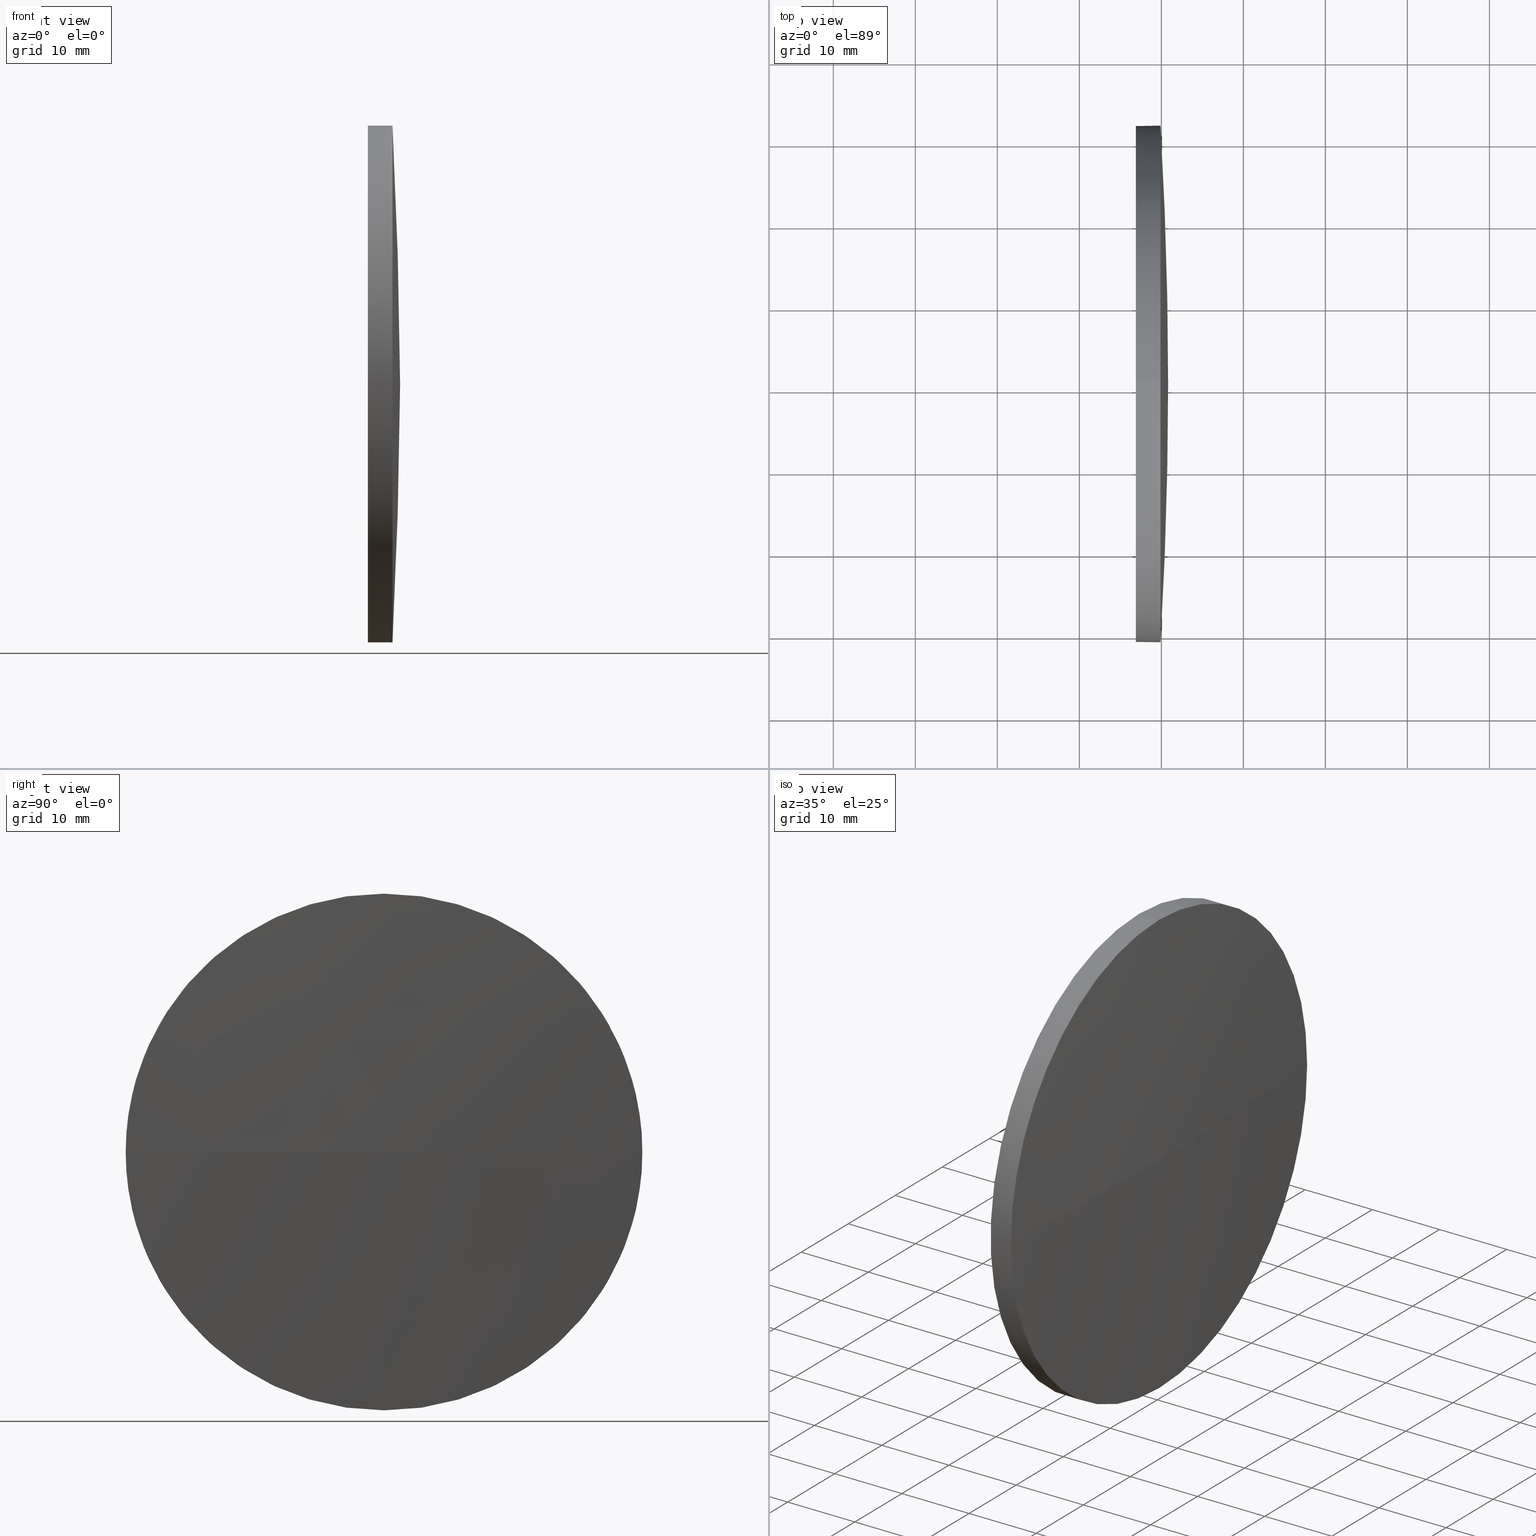
[diagram: canonical four-view strip — front | top / right | iso, engineering-drawing reading convention]
A machine part, canonical four-view strip (front | top / right | iso — engineering-drawing reading convention). The complete STEP part file that produces these views, byte-faithful:
ISO-10303-21;
HEADER;
FILE_DESCRIPTION (( 'STEP AP214' ),
    '1' );
FILE_NAME ('100248.STEP',
    '2019-05-29T01:02:08',
    ( '' ),
    ( '' ),
    'SwSTEP 2.0',
    'SolidWorks 2016',
    '' );
FILE_SCHEMA (( 'AUTOMOTIVE_DESIGN' ));
ENDSEC;

DATA;
#1 = VECTOR ( 'NONE', #186, 1000.000000000000000 ) ;
#2 = EDGE_CURVE ( 'NONE', #151, #177, #49, .T. ) ;
#3 = FACE_OUTER_BOUND ( 'NONE', #159, .T. ) ;
#4 = FILL_AREA_STYLE_COLOUR ( '', #141 ) ;
#5 =( NAMED_UNIT ( * ) PLANE_ANGLE_UNIT ( ) SI_UNIT ( $, .RADIAN. ) );
#6 = ORIENTED_EDGE ( 'NONE', *, *, #154, .T. ) ;
#7 = AXIS2_PLACEMENT_3D ( 'NONE', #115, #145, #131 ) ;
#8 = CIRCLE ( 'NONE', #59, 31.50000000000000000 ) ;
#9 = ADVANCED_FACE ( 'NONE', ( #113 ), #78, .T. ) ;
#10 = SPHERICAL_SURFACE ( 'NONE', #31, 533.9327419354799500 ) ;
#11 = PRESENTATION_STYLE_ASSIGNMENT (( #150 ) ) ;
#12 = ORIENTED_EDGE ( 'NONE', *, *, #139, .F. ) ;
#13 = AXIS2_PLACEMENT_3D ( 'NONE', #167, #94, #134 ) ;
#14 = ORIENTED_EDGE ( 'NONE', *, *, #127, .T. ) ;
#15 = CARTESIAN_POINT ( 'NONE',  ( -303.1094409340929000, 130.5185814569570700, 0.0000000000000000000 ) ) ;
#16 =( GEOMETRIC_REPRESENTATION_CONTEXT ( 3 ) GLOBAL_UNCERTAINTY_ASSIGNED_CONTEXT ( ( #58 ) ) GLOBAL_UNIT_ASSIGNED_CONTEXT ( ( #180, #148, #135 ) ) REPRESENTATION_CONTEXT ( 'NONE', 'WORKASPACE' ) );
#17 = DIRECTION ( 'NONE',  ( -1.000000000000000000, -0.0000000000000000000, -0.0000000000000000000 ) ) ;
#18 = DIRECTION ( 'NONE',  ( -1.000000000000000000, -0.0000000000000000000, -0.0000000000000000000 ) ) ;
#19 = CARTESIAN_POINT ( 'NONE',  ( 226.8933010013870400, 130.5185814569561000, 0.0000000000000000000 ) ) ;
#20 = EDGE_CURVE ( 'NONE', #90, #46, #137, .T. ) ;
#21 = DIRECTION ( 'NONE',  ( 0.0000000000000000000, 0.0000000000000000000, 1.000000000000000000 ) ) ;
#22 =( GEOMETRIC_REPRESENTATION_CONTEXT ( 3 ) GLOBAL_UNCERTAINTY_ASSIGNED_CONTEXT ( ( #163 ) ) GLOBAL_UNIT_ASSIGNED_CONTEXT ( ( #146, #35, #73 ) ) REPRESENTATION_CONTEXT ( 'NONE', 'WORKASPACE' ) );
#23 = VERTEX_POINT ( 'NONE', #126 ) ;
#24 = FILL_AREA_STYLE_COLOUR ( '', #92 ) ;
#25 = CIRCLE ( 'NONE', #156, 31.50000000000000000 ) ;
#26 = ADVANCED_FACE ( 'NONE', ( #181 ), #122, .T. ) ;
#27 = ORIENTED_EDGE ( 'NONE', *, *, #158, .T. ) ;
#28 = STYLED_ITEM ( 'NONE', ( #11 ), #125 ) ;
#29 = CIRCLE ( 'NONE', #37, 31.50000000000000000 ) ;
#30 = EDGE_CURVE ( 'NONE', #23, #177, #8, .T. ) ;
#31 = AXIS2_PLACEMENT_3D ( 'NONE', #143, #63, #179 ) ;
#32 = CARTESIAN_POINT ( 'NONE',  ( 218.1236667371545400, 130.5185814569561000, 31.50000000000000000 ) ) ;
#33 = ORIENTED_EDGE ( 'NONE', *, *, #2, .T. ) ;
#34 = SURFACE_STYLE_USAGE ( .BOTH. , #157 ) ;
#35 =( NAMED_UNIT ( * ) PLANE_ANGLE_UNIT ( ) SI_UNIT ( $, .RADIAN. ) );
#36 = CARTESIAN_POINT ( 'NONE',  ( -303.1094409340929000, 130.5185814569570700, 0.0000000000000000000 ) ) ;
#37 = AXIS2_PLACEMENT_3D ( 'NONE', #19, #161, #52 ) ;
#38 = CARTESIAN_POINT ( 'NONE',  ( 229.8933010013870400, 130.5185814569561000, 0.0000000000000000000 ) ) ;
#39 = EDGE_CURVE ( 'NONE', #77, #46, #82, .T. ) ;
#40 = MECHANICAL_DESIGN_GEOMETRIC_PRESENTATION_REPRESENTATION (  '', ( #106 ), #22 ) ;
#41 = CARTESIAN_POINT ( 'NONE',  ( 218.1236667371545400, 130.5185814569561000, -31.50000000000000000 ) ) ;
#42 = ORIENTED_EDGE ( 'NONE', *, *, #154, .F. ) ;
#43 = PRESENTATION_STYLE_ASSIGNMENT (( #34 ) ) ;
#44 = AXIS2_PLACEMENT_3D ( 'NONE', #51, #71, #178 ) ;
#45 = ADVANCED_FACE ( 'NONE', ( #149 ), #100, .F. ) ;
#46 = VERTEX_POINT ( 'NONE', #102 ) ;
#47 = PRODUCT_DEFINITION_FORMATION_WITH_SPECIFIED_SOURCE ( '�κ�', '', #62, .NOT_KNOWN. ) ;
#48 = DIRECTION ( 'NONE',  ( -1.000000000000000000, 0.0000000000000000000, 0.0000000000000000000 ) ) ;
#49 = LINE ( 'NONE', #32, #1 ) ;
#50 = CARTESIAN_POINT ( 'NONE',  ( 229.8933010013870400, 130.5185814569561000, -31.50000000000000000 ) ) ;
#51 = CARTESIAN_POINT ( 'NONE',  ( 229.8933010013870400, 130.5185814569561000, 0.0000000000000000000 ) ) ;
#52 = DIRECTION ( 'NONE',  ( 0.0000000000000000000, 0.0000000000000000000, 1.000000000000000000 ) ) ;
#53 = AXIS2_PLACEMENT_3D ( 'NONE', #36, #74, #48 ) ;
#54 = CARTESIAN_POINT ( 'NONE',  ( 226.8933010013870400, 130.5185814569561000, 0.0000000000000000000 ) ) ;
#55 =( GEOMETRIC_REPRESENTATION_CONTEXT ( 3 ) GLOBAL_UNCERTAINTY_ASSIGNED_CONTEXT ( ( #176 ) ) GLOBAL_UNIT_ASSIGNED_CONTEXT ( ( #91, #5, #105 ) ) REPRESENTATION_CONTEXT ( 'NONE', 'WORKASPACE' ) );
#56 = DIRECTION ( 'NONE',  ( 0.0000000000000000000, 0.0000000000000000000, 1.000000000000000000 ) ) ;
#57 = ORIENTED_EDGE ( 'NONE', *, *, #139, .T. ) ;
#58 = UNCERTAINTY_MEASURE_WITH_UNIT (LENGTH_MEASURE( 1.000000000000000100E-005 ), #180, 'distance_accuracy_value', 'NONE');
#59 = AXIS2_PLACEMENT_3D ( 'NONE', #54, #18, #61 ) ;
#60 = ORIENTED_EDGE ( 'NONE', *, *, #39, .F. ) ;
#61 = DIRECTION ( 'NONE',  ( 0.0000000000000000000, 0.0000000000000000000, 1.000000000000000000 ) ) ;
#62 = PRODUCT ( '100248', '100248', '', ( #76 ) ) ;
#63 = DIRECTION ( 'NONE',  ( 0.0000000000000000000, 0.0000000000000000000, 1.000000000000000000 ) ) ;
#64 = CARTESIAN_POINT ( 'NONE',  ( 226.8933010013870400, 130.5185814569561000, 0.0000000000000000000 ) ) ;
#65 = AXIS2_PLACEMENT_3D ( 'NONE', #38, #66, #183 ) ;
#66 = DIRECTION ( 'NONE',  ( -1.000000000000000000, -0.0000000000000000000, -0.0000000000000000000 ) ) ;
#67 = APPLICATION_CONTEXT ( 'automotive_design' ) ;
#68 = CIRCLE ( 'NONE', #65, 31.50000000000000000 ) ;
#69 = ORIENTED_EDGE ( 'NONE', *, *, #158, .F. ) ;
#70 = ORIENTED_EDGE ( 'NONE', *, *, #20, .T. ) ;
#71 = DIRECTION ( 'NONE',  ( -1.000000000000000000, -0.0000000000000000000, -0.0000000000000000000 ) ) ;
#72 = DIRECTION ( 'NONE',  ( -1.000000000000000000, -0.0000000000000000000, -0.0000000000000000000 ) ) ;
#73 =( NAMED_UNIT ( * ) SI_UNIT ( $, .STERADIAN. ) SOLID_ANGLE_UNIT ( ) );
#74 = DIRECTION ( 'NONE',  ( 0.0000000000000000000, 0.0000000000000000000, -1.000000000000000000 ) ) ;
#75 = CIRCLE ( 'NONE', #7, 533.9327419354799500 ) ;
#76 = PRODUCT_CONTEXT ( 'NONE', #67, 'mechanical' ) ;
#77 = VERTEX_POINT ( 'NONE', #50 ) ;
#78 = SPHERICAL_SURFACE ( 'NONE', #182, 533.9327419354799500 ) ;
#79 = ADVANCED_FACE ( 'NONE', ( #3 ), #10, .T. ) ;
#80 = ORIENTED_EDGE ( 'NONE', *, *, #39, .T. ) ;
#81 = DIRECTION ( 'NONE',  ( 0.0000000000000000000, 0.0000000000000000000, 1.000000000000000000 ) ) ;
#82 = CIRCLE ( 'NONE', #83, 31.50000000000000000 ) ;
#83 = AXIS2_PLACEMENT_3D ( 'NONE', #160, #72, #21 ) ;
#84 = MANIFOLD_SOLID_BREP ( '��ת1', #144 ) ;
#85 = DIRECTION ( 'NONE',  ( -1.000000000000000000, -0.0000000000000000000, -0.0000000000000000000 ) ) ;
#86 = ORIENTED_EDGE ( 'NONE', *, *, #127, .F. ) ;
#87 = FILL_AREA_STYLE ('',( #4 ) ) ;
#88 = DIRECTION ( 'NONE',  ( 0.0000000000000000000, 0.0000000000000000000, 1.000000000000000000 ) ) ;
#89 = CARTESIAN_POINT ( 'NONE',  ( 229.8933010013870400, 130.5185814569561000, 31.50000000000000000 ) ) ;
#90 = VERTEX_POINT ( 'NONE', #101 ) ;
#91 =( LENGTH_UNIT ( ) NAMED_UNIT ( * ) SI_UNIT ( .MILLI., .METRE. ) );
#92 = COLOUR_RGB ( '',1.000000000000000000, 1.000000000000000000, 1.000000000000000000 ) ;
#93 = ORIENTED_EDGE ( 'NONE', *, *, #30, .F. ) ;
#94 = DIRECTION ( 'NONE',  ( 0.0000000000000000000, 0.0000000000000000000, 1.000000000000000000 ) ) ;
#95 = ORIENTED_EDGE ( 'NONE', *, *, #20, .F. ) ;
#96 = CIRCLE ( 'NONE', #44, 31.50000000000000000 ) ;
#97 = FACE_OUTER_BOUND ( 'NONE', #124, .T. ) ;
#98 = CARTESIAN_POINT ( 'NONE',  ( 229.8933010013870400, 130.5185814569561000, 0.0000000000000000000 ) ) ;
#99 = PRESENTATION_LAYER_ASSIGNMENT (  '', '', ( #106 ) ) ;
#100 = PLANE ( 'NONE',  #109 ) ;
#101 = CARTESIAN_POINT ( 'NONE',  ( 230.8233010013869900, 130.5185814569570400, 0.0000000000000000000 ) ) ;
#102 = CARTESIAN_POINT ( 'NONE',  ( 229.8933010013870200, 99.01858145695680900, 0.0000000000000000000 ) ) ;
#103 = CARTESIAN_POINT ( 'NONE',  ( 218.1236667371545400, 130.5185814569561000, 0.0000000000000000000 ) ) ;
#104 = SURFACE_SIDE_STYLE ('',( #123 ) ) ;
#105 =( NAMED_UNIT ( * ) SI_UNIT ( $, .STERADIAN. ) SOLID_ANGLE_UNIT ( ) );
#106 = STYLED_ITEM ( 'NONE', ( #43 ), #84 ) ;
#107 = SURFACE_STYLE_FILL_AREA ( #87 ) ;
#108 = ORIENTED_EDGE ( 'NONE', *, *, #138, .F. ) ;
#109 = AXIS2_PLACEMENT_3D ( 'NONE', #64, #142, #114 ) ;
#110 = DIRECTION ( 'NONE',  ( 0.0000000000000000000, -1.000000000000000000, 0.0000000000000000000 ) ) ;
#111 = ORIENTED_EDGE ( 'NONE', *, *, #116, .T. ) ;
#112 = MECHANICAL_DESIGN_GEOMETRIC_PRESENTATION_REPRESENTATION (  '', ( #28 ), #55 ) ;
#113 = FACE_OUTER_BOUND ( 'NONE', #166, .T. ) ;
#114 = DIRECTION ( 'NONE',  ( 0.0000000000000000000, 0.0000000000000000000, -1.000000000000000000 ) ) ;
#115 = CARTESIAN_POINT ( 'NONE',  ( -303.1094409340929000, 130.5185814569570700, 0.0000000000000000000 ) ) ;
#116 = EDGE_CURVE ( 'NONE', #177, #23, #29, .T. ) ;
#117 = VERTEX_POINT ( 'NONE', #165 ) ;
#118 = APPLICATION_PROTOCOL_DEFINITION ( 'draft international standard', 'automotive_design', 1998, #168 ) ;
#119 = DIRECTION ( 'NONE',  ( 0.0000000000000000000, 0.0000000000000000000, 1.000000000000000000 ) ) ;
#120 = ORIENTED_EDGE ( 'NONE', *, *, #2, .F. ) ;
#121 = PRODUCT_RELATED_PRODUCT_CATEGORY ( 'part', '', ( #62 ) ) ;
#122 = CYLINDRICAL_SURFACE ( 'NONE', #174, 31.50000000000000000 ) ;
#123 = SURFACE_STYLE_FILL_AREA ( #136 ) ;
#124 = EDGE_LOOP ( 'NONE', ( #133, #27, #129, #120, #57 ) ) ;
#125 = ADVANCED_BREP_SHAPE_REPRESENTATION ( '100248', ( #84, #13 ), #16 ) ;
#126 = CARTESIAN_POINT ( 'NONE',  ( 226.8933010013870400, 130.5185814569561000, -31.50000000000000000 ) ) ;
#127 = EDGE_CURVE ( 'NONE', #90, #117, #75, .T. ) ;
#128 = VECTOR ( 'NONE', #147, 1000.000000000000000 ) ;
#129 = ORIENTED_EDGE ( 'NONE', *, *, #116, .F. ) ;
#130 = CARTESIAN_POINT ( 'NONE',  ( 218.1236667371545400, 130.5185814569561000, 0.0000000000000000000 ) ) ;
#131 = DIRECTION ( 'NONE',  ( 0.0000000000000000000, -1.000000000000000000, -1.224646799147353200E-016 ) ) ;
#132 = PRODUCT_DEFINITION ( 'δ֪', '', #47, #184 ) ;
#133 = ORIENTED_EDGE ( 'NONE', *, *, #138, .T. ) ;
#134 = DIRECTION ( 'NONE',  ( 1.000000000000000000, 0.0000000000000000000, 0.0000000000000000000 ) ) ;
#135 =( NAMED_UNIT ( * ) SI_UNIT ( $, .STERADIAN. ) SOLID_ANGLE_UNIT ( ) );
#136 = FILL_AREA_STYLE ('',( #24 ) ) ;
#137 = CIRCLE ( 'NONE', #53, 533.9327419354800700 ) ;
#138 = EDGE_CURVE ( 'NONE', #117, #77, #96, .T. ) ;
#139 = EDGE_CURVE ( 'NONE', #151, #117, #25, .T. ) ;
#140 = PRODUCT_DEFINITION_SHAPE ( 'NONE', 'NONE',  #132 ) ;
#141 = COLOUR_RGB ( '',1.000000000000000000, 1.000000000000000000, 1.000000000000000000 ) ;
#142 = DIRECTION ( 'NONE',  ( 1.000000000000000000, 0.0000000000000000000, 0.0000000000000000000 ) ) ;
#143 = CARTESIAN_POINT ( 'NONE',  ( -303.1094409340929000, 130.5185814569570700, 0.0000000000000000000 ) ) ;
#144 = CLOSED_SHELL ( 'NONE', ( #153, #9, #79, #26, #45 ) ) ;
#145 = DIRECTION ( 'NONE',  ( 0.0000000000000000000, -1.224646799147353200E-016, 1.000000000000000000 ) ) ;
#146 =( LENGTH_UNIT ( ) NAMED_UNIT ( * ) SI_UNIT ( .MILLI., .METRE. ) );
#147 = DIRECTION ( 'NONE',  ( -1.000000000000000000, -0.0000000000000000000, -0.0000000000000000000 ) ) ;
#148 =( NAMED_UNIT ( * ) PLANE_ANGLE_UNIT ( ) SI_UNIT ( $, .RADIAN. ) );
#149 = FACE_OUTER_BOUND ( 'NONE', #170, .T. ) ;
#150 = SURFACE_STYLE_USAGE ( .BOTH. , #104 ) ;
#151 = VERTEX_POINT ( 'NONE', #89 ) ;
#152 = SHAPE_DEFINITION_REPRESENTATION ( #140, #125 ) ;
#153 = ADVANCED_FACE ( 'NONE', ( #97 ), #162, .T. ) ;
#154 = EDGE_CURVE ( 'NONE', #46, #151, #68, .T. ) ;
#155 = ORIENTED_EDGE ( 'NONE', *, *, #30, .T. ) ;
#156 = AXIS2_PLACEMENT_3D ( 'NONE', #98, #17, #56 ) ;
#157 = SURFACE_SIDE_STYLE ('',( #107 ) ) ;
#158 = EDGE_CURVE ( 'NONE', #77, #23, #175, .T. ) ;
#159 = EDGE_LOOP ( 'NONE', ( #86, #70, #60, #108 ) ) ;
#160 = CARTESIAN_POINT ( 'NONE',  ( 229.8933010013870400, 130.5185814569561000, 0.0000000000000000000 ) ) ;
#161 = DIRECTION ( 'NONE',  ( -1.000000000000000000, -0.0000000000000000000, -0.0000000000000000000 ) ) ;
#162 = CYLINDRICAL_SURFACE ( 'NONE', #172, 31.50000000000000000 ) ;
#163 = UNCERTAINTY_MEASURE_WITH_UNIT (LENGTH_MEASURE( 1.000000000000000100E-005 ), #146, 'distance_accuracy_value', 'NONE');
#164 = DIRECTION ( 'NONE',  ( -1.000000000000000000, -0.0000000000000000000, -0.0000000000000000000 ) ) ;
#165 = CARTESIAN_POINT ( 'NONE',  ( 229.8933010013870200, 162.0185814569563500, 3.857637417314076700E-015 ) ) ;
#166 = EDGE_LOOP ( 'NONE', ( #95, #14, #12, #42 ) ) ;
#167 = CARTESIAN_POINT ( 'NONE',  ( 0.0000000000000000000, 0.0000000000000000000, 0.0000000000000000000 ) ) ;
#168 = APPLICATION_CONTEXT ( 'automotive_design' ) ;
#169 = CARTESIAN_POINT ( 'NONE',  ( 226.8933010013870400, 130.5185814569561000, 31.50000000000000000 ) ) ;
#170 = EDGE_LOOP ( 'NONE', ( #111, #155 ) ) ;
#171 = APPLICATION_PROTOCOL_DEFINITION ( 'draft international standard', 'automotive_design', 1998, #67 ) ;
#172 = AXIS2_PLACEMENT_3D ( 'NONE', #103, #85, #119 ) ;
#173 = EDGE_LOOP ( 'NONE', ( #69, #80, #6, #33, #93 ) ) ;
#174 = AXIS2_PLACEMENT_3D ( 'NONE', #130, #164, #88 ) ;
#175 = LINE ( 'NONE', #41, #128 ) ;
#176 = UNCERTAINTY_MEASURE_WITH_UNIT (LENGTH_MEASURE( 1.000000000000000100E-005 ), #91, 'distance_accuracy_value', 'NONE');
#177 = VERTEX_POINT ( 'NONE', #169 ) ;
#178 = DIRECTION ( 'NONE',  ( 0.0000000000000000000, 0.0000000000000000000, 1.000000000000000000 ) ) ;
#179 = DIRECTION ( 'NONE',  ( 0.0000000000000000000, -1.000000000000000000, 0.0000000000000000000 ) ) ;
#180 =( LENGTH_UNIT ( ) NAMED_UNIT ( * ) SI_UNIT ( .MILLI., .METRE. ) );
#181 = FACE_OUTER_BOUND ( 'NONE', #173, .T. ) ;
#182 = AXIS2_PLACEMENT_3D ( 'NONE', #15, #81, #110 ) ;
#183 = DIRECTION ( 'NONE',  ( 0.0000000000000000000, 0.0000000000000000000, 1.000000000000000000 ) ) ;
#184 = PRODUCT_DEFINITION_CONTEXT ( 'detailed design', #168, 'design' ) ;
#185 = PRESENTATION_LAYER_ASSIGNMENT (  '', '', ( #28 ) ) ;
#186 = DIRECTION ( 'NONE',  ( -1.000000000000000000, -0.0000000000000000000, -0.0000000000000000000 ) ) ;
ENDSEC;
END-ISO-10303-21;
